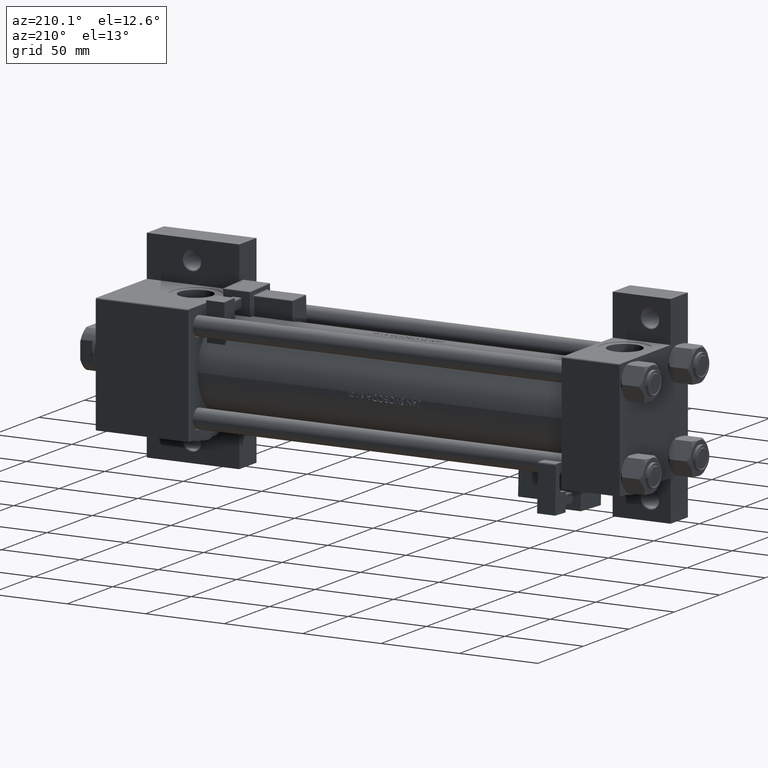
[diagram: clean part render]
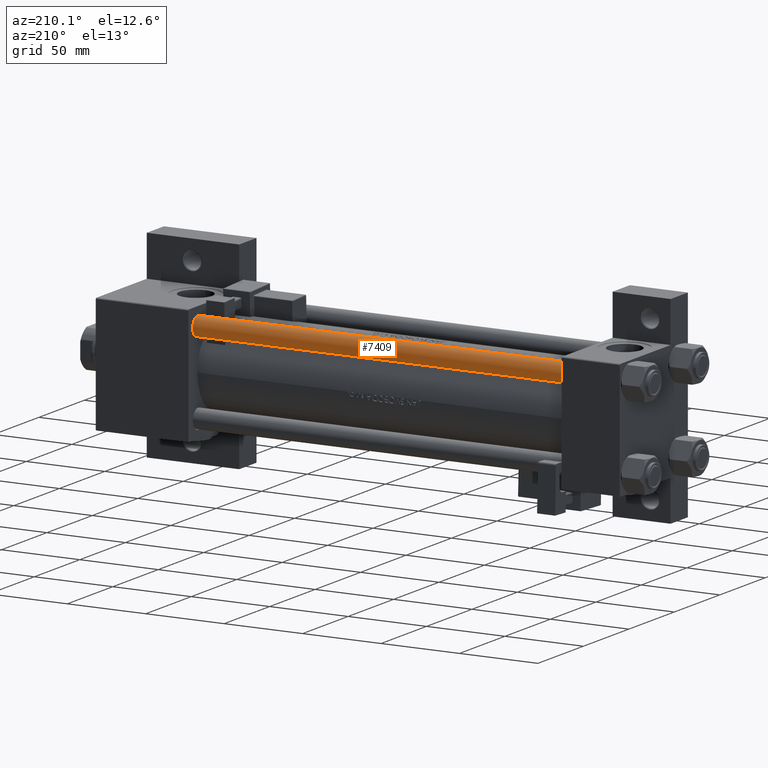
[diagram: same view with one face highlighted and labeled with its STEP entity id]
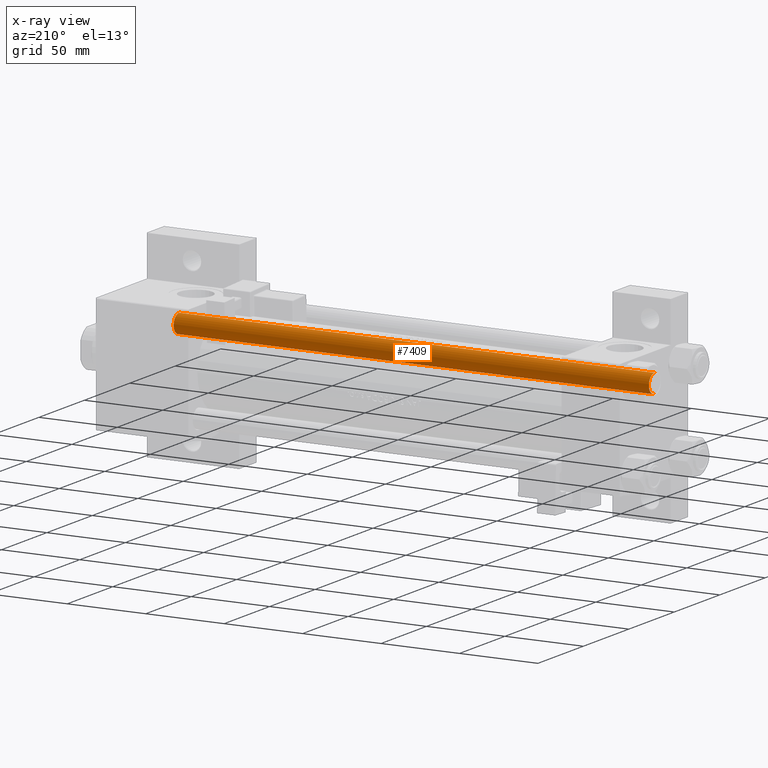
[diagram: x-ray of the same camera — body ghosted, the highlighted face saturated]
A machine part, auxiliary view. The second image highlights one B-rep face of the part: STEP entity #7409.
The next image is the same camera in x-ray: the body ghosted, the highlighted face saturated — about 0% of this face is hidden behind the body in this view.
In plain terms, the highlighted cylindrical surface (edge-blend (fillet) strip) has radius 6 mm, axis along (-1, -0, -0).
Its self-contained STEP definition (entity closure, byte-faithful):
#1028 = CARTESIAN_POINT ( 'NONE',  ( 6.000000000000000888, 7.347880794884120722E-16, 0.4999999999999449329 ) ) ;
#1650 = DIRECTION ( 'NONE',  ( 1.000000000000000000, 0.000000000000000000, 0.000000000000000000 ) ) ;
#1978 = CARTESIAN_POINT ( 'NONE',  ( 6.000000000000000888, 7.347880794884120722E-16, 304.0000000000000000 ) ) ;
#4648 = VECTOR ( 'NONE', #28915, 1000.000000000000000 ) ;
#6476 = ORIENTED_EDGE ( 'NONE', *, *, #18194, .T. ) ;
#6767 = DIRECTION ( 'NONE',  ( -0.000000000000000000, -0.000000000000000000, -1.000000000000000000 ) ) ;
#7409 = ADVANCED_FACE ( 'NONE', ( #10087 ), #22109, .T. ) ;
#9550 = AXIS2_PLACEMENT_3D ( 'NONE', #10603, #42030, #38594 ) ;
#9624 = ORIENTED_EDGE ( 'NONE', *, *, #16087, .F. ) ;
#9767 = CARTESIAN_POINT ( 'NONE',  ( 0.000000000000000000, 0.000000000000000000, 0.4999999999999449329 ) ) ;
#10087 = FACE_OUTER_BOUND ( 'NONE', #41070, .T. ) ;
#10603 = CARTESIAN_POINT ( 'NONE',  ( 0.000000000000000000, 0.000000000000000000, 304.0000000000000000 ) ) ;
#10781 = VERTEX_POINT ( 'NONE', #10784 ) ;
#10784 = CARTESIAN_POINT ( 'NONE',  ( -6.000000000000000888, 0.000000000000000000, 303.5000000000000000 ) ) ;
#12639 = DIRECTION ( 'NONE',  ( 1.000000000000000000, 0.000000000000000000, 0.000000000000000000 ) ) ;
#16087 = EDGE_CURVE ( 'NONE', #10781, #31519, #46563, .T. ) ;
#18194 = EDGE_CURVE ( 'NONE', #49739, #37261, #36765, .T. ) ;
#20190 = AXIS2_PLACEMENT_3D ( 'NONE', #9767, #49304, #1650 ) ;
#22109 = CYLINDRICAL_SURFACE ( 'NONE', #9550, 6.000000000000000888 ) ;
#24961 = CARTESIAN_POINT ( 'NONE',  ( 6.000000000000000888, 7.347880794884120722E-16, 303.5000000000000000 ) ) ;
#25262 = ORIENTED_EDGE ( 'NONE', *, *, #32677, .T. ) ;
#26435 = EDGE_CURVE ( 'NONE', #37261, #31519, #28551, .T. ) ;
#26625 = CARTESIAN_POINT ( 'NONE',  ( -6.000000000000000888, 0.000000000000000000, 304.0000000000000000 ) ) ;
#28551 = CIRCLE ( 'NONE', #20190, 6.000000000000000888 ) ;
#28915 = DIRECTION ( 'NONE',  ( -0.000000000000000000, -0.000000000000000000, -1.000000000000000000 ) ) ;
#31286 = VECTOR ( 'NONE', #6767, 1000.000000000000000 ) ;
#31519 = VERTEX_POINT ( 'NONE', #44853 ) ;
#32677 = EDGE_CURVE ( 'NONE', #10781, #49739, #45582, .T. ) ;
#36096 = ORIENTED_EDGE ( 'NONE', *, *, #26435, .T. ) ;
#36765 = LINE ( 'NONE', #1978, #4648 ) ;
#36987 = CARTESIAN_POINT ( 'NONE',  ( 0.000000000000000000, 0.000000000000000000, 303.5000000000000000 ) ) ;
#37261 = VERTEX_POINT ( 'NONE', #1028 ) ;
#38594 = DIRECTION ( 'NONE',  ( -1.000000000000000000, 0.000000000000000000, 0.000000000000000000 ) ) ;
#41070 = EDGE_LOOP ( 'NONE', ( #25262, #6476, #36096, #9624 ) ) ;
#42030 = DIRECTION ( 'NONE',  ( -0.000000000000000000, -0.000000000000000000, -1.000000000000000000 ) ) ;
#43886 = AXIS2_PLACEMENT_3D ( 'NONE', #36987, #48538, #12639 ) ;
#44853 = CARTESIAN_POINT ( 'NONE',  ( -6.000000000000000888, 0.000000000000000000, 0.4999999999999449329 ) ) ;
#45582 = CIRCLE ( 'NONE', #43886, 6.000000000000000888 ) ;
#46563 = LINE ( 'NONE', #26625, #31286 ) ;
#48538 = DIRECTION ( 'NONE',  ( 0.000000000000000000, 0.000000000000000000, -1.000000000000000000 ) ) ;
#49304 = DIRECTION ( 'NONE',  ( -0.000000000000000000, -0.000000000000000000, 1.000000000000000000 ) ) ;
#49739 = VERTEX_POINT ( 'NONE', #24961 ) ;